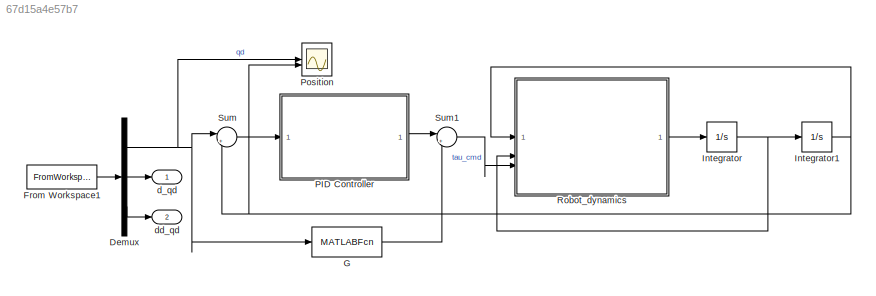
MODEL slx_67d15a4e57b7
KIND model
CONFIG AbsTol = auto
CONFIG EnableMultiTasking = off
CONFIG FixedStep = auto
CONFIG MaxStep = auto
CONFIG MinStep = auto
CONFIG RelTol = 1e-3
CONFIG SampleTimeConstraint = Unconstrained
CONFIG SolverName = VariableStepAuto
CONFIG StartTime = 0.0
CONFIG StopTime = 4
BLOCK [Demux] Demux
  Outputs = [6 6 6]
BLOCK [FromWorkspace] From Workspace1
  SampleTime = -1
  VariableName = trajectory_data
BLOCK [MATLABFcn] G
  MATLABFcn = my_gravity_torque(u)
  OutputDimensions = 6
BLOCK [Integrator] Integrator
BLOCK [Integrator] Integrator1
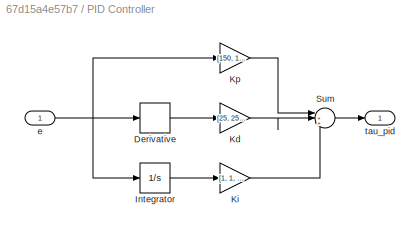
BLOCK [SubSystem] PID Controller
BLOCK [Derivative] PID Controller/Derivative
BLOCK [Integrator] PID Controller/Integrator
BLOCK [Gain] PID Controller/Kd
  Gain = [25, 25, 20, 8, 6, 2]
BLOCK [Gain] PID Controller/Ki
  Gain = [1, 1, 1, 0.5, 0.5, 0.1]
BLOCK [Gain] PID Controller/Kp
  Gain = [150, 150, 120, 50, 40, 20]
BLOCK [Sum] PID Controller/Sum
  Inputs = |+++
BLOCK [Inport] PID Controller/e
BLOCK [Outport] PID Controller/tau_pid
BLOCK [Scope] Position
  Floating = off
  NumInputPorts = 2
  ScopeSpecificationString = Simulink.scopes.TimeScopeBlockCfg('CurrentConfiguration', extmgr.ConfigurationSet(extmgr.Configuration('Core','General UI',true),extmgr.Configuration('Core','Source UI',true),extmgr.Configuration('Sources','WiredSimulink',true),extmgr.Configuration('Visuals','Time Domain',true,'SerializedDisplays',{struct('MinYLimReal','-2.48865','MaxYLimReal','1.45388','YLabelReal','','MinYLimMag','0.00000','MaxY...<+1781ch>
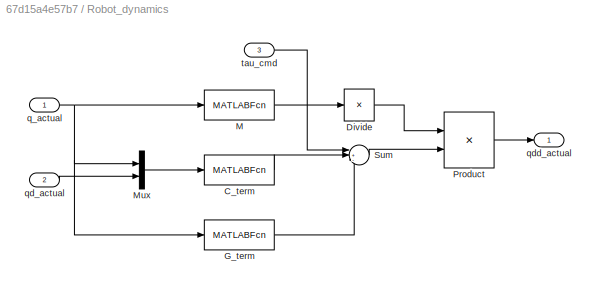
BLOCK [SubSystem] Robot_dynamics
BLOCK [MATLABFcn] Robot_dynamics/C_term
  MATLABFcn = my_velocity_product(u)
  OutputDimensions = 6
BLOCK [Product] Robot_dynamics/Divide
  Inputs = /
  Multiplication = Matrix(*)
BLOCK [MATLABFcn] Robot_dynamics/G_term
  MATLABFcn = my_gravity_torque(u)
  OutputDimensions = 6
BLOCK [MATLABFcn] Robot_dynamics/M
  MATLABFcn = my_mass_matrix(u)
  Output1D = off
  OutputDimensions = [6 6]
BLOCK [Mux] Robot_dynamics/Mux
  DisplayOption = bar
  Inputs = 2
BLOCK [Product] Robot_dynamics/Product
  Multiplication = Matrix(*)
BLOCK [Sum] Robot_dynamics/Sum
  Inputs = |+--
BLOCK [Inport] Robot_dynamics/q_actual
BLOCK [Inport] Robot_dynamics/qd_actual
  Port = 2
BLOCK [Outport] Robot_dynamics/qdd_actual
BLOCK [Inport] Robot_dynamics/tau_cmd
  Port = 3
BLOCK [Sum] Sum
  Inputs = |+-
BLOCK [Sum] Sum1
  Inputs = |++
BLOCK [Outport] d_qd
BLOCK [Outport] dd_qd
  Port = 2
NET Demux:1 -> G:1, Position:1, Sum:1
LINE Demux:2 -> d_qd:1
LINE Demux:3 -> dd_qd:1
LINE From Workspace1:1 -> Demux:1
LINE G:1 -> Sum1:2
NET Integrator1:1 -> Position:2, Robot_dynamics:1, Sum:2
NET Integrator:1 -> Integrator1:1, Robot_dynamics:2
LINE PID Controller/Derivative:1 -> PID Controller/Kd:1
LINE PID Controller/Integrator:1 -> PID Controller/Ki:1
LINE PID Controller/Kd:1 -> PID Controller/Sum:2
LINE PID Controller/Ki:1 -> PID Controller/Sum:3
LINE PID Controller/Kp:1 -> PID Controller/Sum:1
LINE PID Controller/Sum:1 -> PID Controller/tau_pid:1
NET PID Controller/e:1 -> PID Controller/Derivative:1, PID Controller/Integrator:1, PID Controller/Kp:1
LINE PID Controller:1 -> Sum1:1
LINE Robot_dynamics/C_term:1 -> Robot_dynamics/Sum:2
LINE Robot_dynamics/Divide:1 -> Robot_dynamics/Product:1
LINE Robot_dynamics/G_term:1 -> Robot_dynamics/Sum:3
LINE Robot_dynamics/M:1 -> Robot_dynamics/Divide:1
LINE Robot_dynamics/Mux:1 -> Robot_dynamics/C_term:1
LINE Robot_dynamics/Product:1 -> Robot_dynamics/qdd_actual:1
LINE Robot_dynamics/Sum:1 -> Robot_dynamics/Product:2
NET Robot_dynamics/q_actual:1 -> Robot_dynamics/G_term:1, Robot_dynamics/M:1, Robot_dynamics/Mux:1
LINE Robot_dynamics/qd_actual:1 -> Robot_dynamics/Mux:2
LINE Robot_dynamics/tau_cmd:1 -> Robot_dynamics/Sum:1
LINE Robot_dynamics:1 -> Integrator:1
LINE Sum1:1 -> Robot_dynamics:3
LINE Sum:1 -> PID Controller:1
note: NET lines group one-source signal fan-out (src -> all destinations, sorted); 1:1 wires keep LINE
